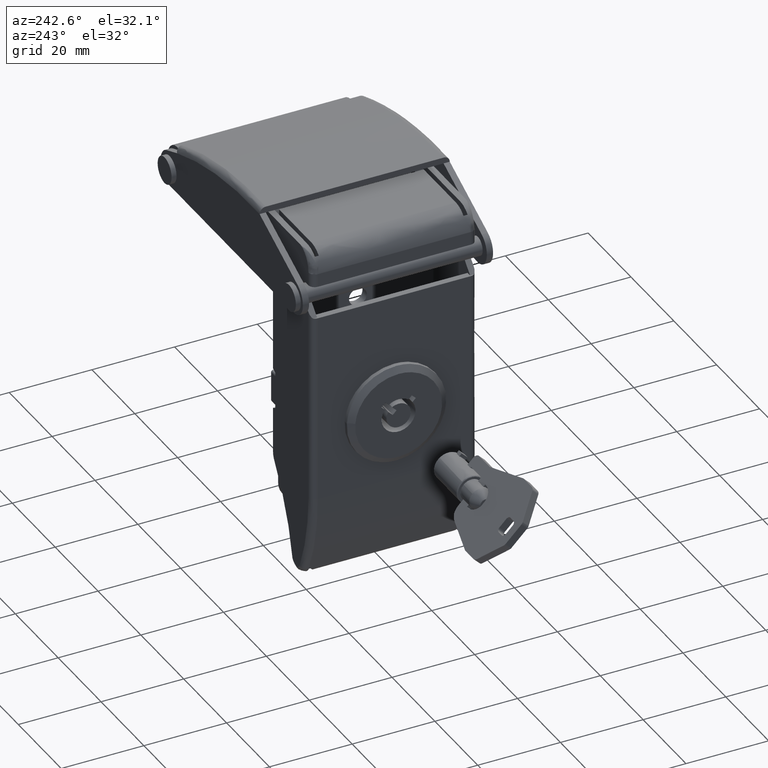
[diagram: clean part render]
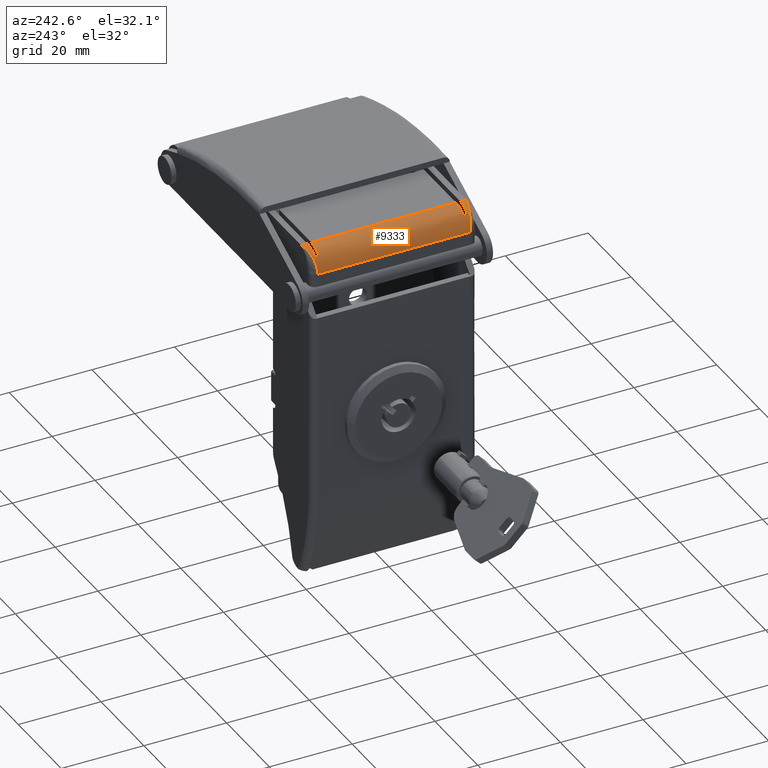
[diagram: same view with one face highlighted and labeled with its STEP entity id]
A machine part, auxiliary view. The second image highlights one B-rep face of the part: STEP entity #9333.
In plain terms, the highlighted face is a freeform B-spline surface patch.
Its self-contained STEP definition (entity closure, byte-faithful):
#7950=CARTESIAN_POINT('',(2.499774046842360,-19.999999999945949,10.700183812501679));
#7951=VERTEX_POINT('',#7950);
#7973=CARTESIAN_POINT('',(-2.500225953158005,-18.499999999945899,5.700183812501681));
#7974=VERTEX_POINT('',#7973);
#7975=CARTESIAN_POINT('',(-2.500225953158010,-18.499999999945889,5.700183812501680));
#7976=CARTESIAN_POINT('',(-2.498559568376104,-18.500643117945842,5.798168828600363));
#7977=CARTESIAN_POINT('',(-2.495191668920071,-18.501942911838398,5.996204531999264));
#7978=CARTESIAN_POINT('',(-2.467560178161782,-18.512170064098761,6.295210417927737));
#7979=CARTESIAN_POINT('',(-2.422248572848211,-18.528411536664660,6.598047549260239));
#7980=CARTESIAN_POINT('',(-2.356686010884040,-18.551298120340181,6.903415747947917));
#7981=CARTESIAN_POINT('',(-2.270473127891905,-18.580655143801401,7.209887579608617));
#7982=CARTESIAN_POINT('',(-2.162720962974908,-18.616530549419309,7.515909191083124));
#7983=CARTESIAN_POINT('',(-2.032806272492662,-18.658911203370309,7.819802790013014));
#7984=CARTESIAN_POINT('',(-1.880182722300694,-18.707799320034621,8.119771148302378));
#7985=CARTESIAN_POINT('',(-1.704455265734961,-18.763198975038978,8.413902230184018));
#7986=CARTESIAN_POINT('',(-1.505375655274228,-18.825090427212590,8.700182276321220));
#7987=CARTESIAN_POINT('',(-1.282884706074203,-18.893550293164409,8.976485873333985));
#7988=CARTESIAN_POINT('',(-1.041347282657713,-18.966975884328310,9.236042358863664));
#7989=CARTESIAN_POINT('',(-0.773826836179085,-19.048753884481691,9.485523335278389));
#7990=CARTESIAN_POINT('',(-0.470736665624685,-19.141338198832852,9.729069161296605));
#7991=CARTESIAN_POINT('',(-0.114776168572373,-19.248454669266799,9.970059362932693));
#7992=CARTESIAN_POINT('',(0.297317075458156,-19.370213335974089,10.197879522938560));
#7993=CARTESIAN_POINT('',(0.767481977468179,-19.506581497443079,10.400763488834279));
#7994=CARTESIAN_POINT('',(1.295746289589744,-19.657622298586951,10.563529772939660));
#7995=CARTESIAN_POINT('',(1.879724480689295,-19.823136228819958,10.677593865638110));
#7996=CARTESIAN_POINT('',(2.288462558985780,-19.939725227307392,10.692485209772300));
#7997=CARTESIAN_POINT('',(2.499774046842012,-19.999999999945949,10.700183812501679));
#7998=B_SPLINE_CURVE_WITH_KNOTS('',3,(#7975,#7976,#7977,#7978,#7979,#7980,#7981,#7982,#7983,#7984,#7985,#7986,#7987,#7988,#7989,#7990,#7991,#7992,#7993,#7994,#7995,#7996,#7997),.UNSPECIFIED.,.F.,.U.,(4,1,1,1,1,1,1,1,1,1,1,1,1,1,1,1,1,1,1,1,4),(0.0,0.036644747239203,0.074062020748987,0.112268345901417,0.151279244260088,0.191109295713854,0.231772197956223,0.273280823106989,0.315647271362814,0.358882921634533,0.402998479184891,0.448004020322414,0.493909034238548,0.538312713655228,0.588095289759690,0.643263272020130,0.703821145783683,0.769772006376145,0.841117954502311,0.917860353095351,1.0),.UNSPECIFIED.);
#7999=EDGE_CURVE('',#7974,#7951,#7998,.T.);
#8129=CARTESIAN_POINT('',(-1.000225953043632,-18.500000000048551,9.270898024410830));
#8130=VERTEX_POINT('',#8129);
#8136=CARTESIAN_POINT('',(2.499774046841990,-18.500000000057749,10.700183812500160));
#8137=VERTEX_POINT('',#8136);
#8138=CARTESIAN_POINT('',(-1.000225953043632,-18.500000000048551,9.270898024410830));
#8139=CARTESIAN_POINT('',(0.457937209169858,-18.500000000052335,10.700183812501681));
#8140=CARTESIAN_POINT('',(2.499774046841990,-18.500000000057700,10.700183812501679));
#8148=(BOUNDED_CURVE()B_SPLINE_CURVE(2,(#8138,#8139,#8140),.UNSPECIFIED.,.F.,.U.)CURVE()GEOMETRIC_REPRESENTATION_ITEM()QUASI_UNIFORM_CURVE()RATIONAL_B_SPLINE_CURVE((1.0,0.925781519213420,1.0))REPRESENTATION_ITEM(''));
#8149=EDGE_CURVE('',#8130,#8137,#8148,.T.);
#8704=CARTESIAN_POINT('',(-2.500225953158005,18.499999999953548,5.700183812501681));
#8705=VERTEX_POINT('',#8704);
#8706=CARTESIAN_POINT('',(-2.500225953158005,-18.499999999945899,5.700183812501681));
#8707=CARTESIAN_POINT('',(-2.500225953158005,18.499999999953548,5.700183812501681));
#8708=QUASI_UNIFORM_CURVE('',1,(#8706,#8707),.UNSPECIFIED.,.F.,.U.);
#8709=EDGE_CURVE('',#7974,#8705,#8708,.T.);
#9086=CARTESIAN_POINT('',(2.499774046842360,-19.999999999945949,10.700183812501679));
#9087=CARTESIAN_POINT('',(2.499774046841990,-18.500000000057749,10.700183812500160));
#9088=QUASI_UNIFORM_CURVE('',1,(#9086,#9087),.UNSPECIFIED.,.F.,.U.);
#9089=EDGE_CURVE('',#7951,#8137,#9088,.T.);
#9212=CARTESIAN_POINT('',(2.630658788381363,-20.999999999943441,10.698470437379470));
#9213=CARTESIAN_POINT('',(2.630658788381363,21.024999999951032,10.698470437379470));
#9214=CARTESIAN_POINT('',(-2.824013896128599,-20.999999999943430,10.841306068481636));
#9215=CARTESIAN_POINT('',(-2.824013896128599,21.024999999951039,10.841306068481636));
#9216=CARTESIAN_POINT('',(-2.490899945267343,-20.999999999943441,5.394941114827402));
#9217=CARTESIAN_POINT('',(-2.490899945267343,21.024999999951032,5.394941114827402));
#9225=(BOUNDED_SURFACE()B_SPLINE_SURFACE(1,2,((#9212,#9214,#9216),(#9213,#9215,#9217)),.UNSPECIFIED.,.F.,.F.,.U.)B_SPLINE_SURFACE_WITH_KNOTS((2,2),(3,3),(0.0,42.024999999894462),(0.0,8.800210617836669),.UNSPECIFIED.)GEOMETRIC_REPRESENTATION_ITEM()RATIONAL_B_SPLINE_SURFACE(((1.0,0.675590207615660,1.0),(1.0,0.675590207615660,1.0)))REPRESENTATION_ITEM('')SURFACE());
#9226=CARTESIAN_POINT('',(2.499774046841990,18.500000000051148,10.700183812500160));
#9227=VERTEX_POINT('',#9226);
#9228=CARTESIAN_POINT('',(2.499774046842360,19.999999999953602,10.700183812501679));
#9229=VERTEX_POINT('',#9228);
#9230=CARTESIAN_POINT('',(2.499774046841990,18.500000000051148,10.700183812500160));
#9231=CARTESIAN_POINT('',(2.499774046842360,19.999999999953602,10.700183812501679));
#9232=QUASI_UNIFORM_CURVE('',1,(#9230,#9231),.UNSPECIFIED.,.F.,.U.);
#9233=EDGE_CURVE('',#9227,#9229,#9232,.T.);
#9234=ORIENTED_EDGE('',*,*,#9233,.T.);
#9235=CARTESIAN_POINT('',(2.499774046842360,19.999999999953602,10.700183812501679));
#9236=CARTESIAN_POINT('',(2.392419738726056,19.969313253947480,10.698192709281750));
#9237=CARTESIAN_POINT('',(2.181182303965408,19.908931983541649,10.694274882937339));
#9238=CARTESIAN_POINT('',(1.870565251119660,19.820706256850531,10.663371245532490));
#9239=CARTESIAN_POINT('',(1.572482351757014,19.736096099452570,10.616486514690260));
#9240=CARTESIAN_POINT('',(1.287713968831147,19.655157228711971,10.553853885568159));
#9241=CARTESIAN_POINT('',(1.016848326299818,19.577875333566219,10.477881323229450));
#9242=CARTESIAN_POINT('',(0.760275631911821,19.504253894683728,10.390355939147810));
#9243=CARTESIAN_POINT('',(0.518213526164931,19.434291848636999,10.293137050132639));
#9244=CARTESIAN_POINT('',(0.290724587394967,19.367989260071258,10.187966163542001));
#9245=CARTESIAN_POINT('',(0.077735505626328,19.305345846624320,10.076504281441011));
#9246=CARTESIAN_POINT('',(-0.120944806914509,19.246361454841601,9.960314662120261));
#9247=CARTESIAN_POINT('',(-0.305607732573511,19.191035539974020,9.840861989822290));
#9248=CARTESIAN_POINT('',(-0.476628333979844,19.139368637258031,9.719509898363233));
#9249=CARTESIAN_POINT('',(-0.634449872621167,19.091357278837251,9.597520471827739));
#9250=CARTESIAN_POINT('',(-0.779568838479470,19.047011457654850,9.476056635049986));
#9251=CARTESIAN_POINT('',(-0.912522941174393,19.006294466049251,9.356179611627645));
#9252=CARTESIAN_POINT('',(-1.166527338720940,18.928919994361880,9.110630365900011));
#9253=CARTESIAN_POINT('',(-1.510835784985258,18.823833870572450,8.713597340833902));
#9254=CARTESIAN_POINT('',(-1.886606745162961,18.706152587724620,8.131859524110150));
#9255=CARTESIAN_POINT('',(-2.170383980582487,18.614385126416071,7.526511226487944));
#9256=CARTESIAN_POINT('',(-2.363763749191071,18.549213471544419,6.912512038671250));
#9257=CARTESIAN_POINT('',(-2.479450638618062,18.507978338612599,6.302778439899957));
#9258=CARTESIAN_POINT('',(-2.493397617078079,18.502622284089199,5.898241879344598));
#9259=CARTESIAN_POINT('',(-2.500225953158010,18.499999999954110,5.700183812501680));
#9260=B_SPLINE_CURVE_WITH_KNOTS('',3,(#9235,#9236,#9237,#9238,#9239,#9240,#9241,#9242,#9243,#9244,#9245,#9246,#9247,#9248,#9249,#9250,#9251,#9252,#9253,#9254,#9255,#9256,#9257,#9258,#9259),.UNSPECIFIED.,.F.,.U.,(4,1,1,1,1,1,1,1,1,1,1,1,1,1,1,1,1,1,1,1,1,1,4),(0.0,0.041761762904653,0.082173205918602,0.121234501048136,0.158945844175421,0.195307458414746,0.230319598114181,0.263982553657176,0.296296657263719,0.327262290050978,0.356879890695761,0.385149966154536,0.412073105055003,0.437649994597632,0.461881442128365,0.484768403016208,0.506312017174343,0.597165752168086,0.684468507109956,0.768303216431058,0.848763613447900,0.925955799110725,1.0),.UNSPECIFIED.);
#9261=EDGE_CURVE('',#9229,#8705,#9260,.T.);
#9262=ORIENTED_EDGE('',*,*,#9261,.T.);
#9263=ORIENTED_EDGE('',*,*,#8709,.F.);
#9264=ORIENTED_EDGE('',*,*,#7999,.T.);
#9265=ORIENTED_EDGE('',*,*,#9089,.T.);
#9266=ORIENTED_EDGE('',*,*,#8149,.F.);
#9267=CARTESIAN_POINT('',(-1.000225953041008,-17.499999999716149,9.270898024410830));
#9268=VERTEX_POINT('',#9267);
#9269=CARTESIAN_POINT('',(-1.000225953041008,-17.499999999716149,9.270898024410830));
#9270=CARTESIAN_POINT('',(-1.000225953043632,-18.500000000048551,9.270898024410830));
#9271=QUASI_UNIFORM_CURVE('',1,(#9269,#9270),.UNSPECIFIED.,.F.,.U.);
#9272=EDGE_CURVE('',#9268,#8130,#9271,.T.);
#9273=ORIENTED_EDGE('',*,*,#9272,.F.);
#9274=CARTESIAN_POINT('',(2.499774046841990,-17.499999999964452,10.700183812500160));
#9275=VERTEX_POINT('',#9274);
#9276=CARTESIAN_POINT('',(2.499774046841990,-17.499999999964452,10.700183812500160));
#9277=CARTESIAN_POINT('',(0.457937209170951,-17.499999999959400,10.700183812501681));
#9278=CARTESIAN_POINT('',(-1.000225954279242,-17.499999999955719,9.270898025674079));
#9286=(BOUNDED_CURVE()B_SPLINE_CURVE(2,(#9276,#9277,#9278),.UNSPECIFIED.,.F.,.U.)CURVE()GEOMETRIC_REPRESENTATION_ITEM()QUASI_UNIFORM_CURVE()RATIONAL_B_SPLINE_CURVE((1.0,0.925781519213491,1.0))REPRESENTATION_ITEM(''));
#9287=EDGE_CURVE('',#9275,#9268,#9286,.T.);
#9288=ORIENTED_EDGE('',*,*,#9287,.F.);
#9289=CARTESIAN_POINT('',(2.499774046841990,17.499999999957851,10.700183812500160));
#9290=VERTEX_POINT('',#9289);
#9291=CARTESIAN_POINT('',(2.499774046841990,-17.499999999964452,10.700183812500160));
#9292=CARTESIAN_POINT('',(2.499774046841990,17.499999999957851,10.700183812500160));
#9293=QUASI_UNIFORM_CURVE('',1,(#9291,#9292),.UNSPECIFIED.,.F.,.U.);
#9294=EDGE_CURVE('',#9275,#9290,#9293,.T.);
#9295=ORIENTED_EDGE('',*,*,#9294,.T.);
#9296=CARTESIAN_POINT('',(-1.000225952995012,17.499999999958249,9.270898026932819));
#9297=VERTEX_POINT('',#9296);
#9298=CARTESIAN_POINT('',(-1.000225952995012,17.499999999958249,9.270898026932819));
#9299=CARTESIAN_POINT('',(0.457937210220013,17.499999999957961,10.700183812501677));
#9300=CARTESIAN_POINT('',(2.499774046841990,17.499999999957751,10.700183812501679));
#9308=(BOUNDED_CURVE()B_SPLINE_CURVE(2,(#9298,#9299,#9300),.UNSPECIFIED.,.F.,.U.)CURVE()GEOMETRIC_REPRESENTATION_ITEM()QUASI_UNIFORM_CURVE()RATIONAL_B_SPLINE_CURVE((1.0,0.925781519281475,1.0))REPRESENTATION_ITEM(''));
#9309=EDGE_CURVE('',#9297,#9290,#9308,.T.);
#9310=ORIENTED_EDGE('',*,*,#9309,.F.);
#9311=CARTESIAN_POINT('',(-1.000225952995012,18.500000000051148,9.270898026932869));
#9312=VERTEX_POINT('',#9311);
#9313=CARTESIAN_POINT('',(-1.000225952995012,18.500000000051148,9.270898026932869));
#9314=CARTESIAN_POINT('',(-1.000225952995012,17.499999999958249,9.270898026932819));
#9315=QUASI_UNIFORM_CURVE('',1,(#9313,#9314),.UNSPECIFIED.,.F.,.U.);
#9316=EDGE_CURVE('',#9312,#9297,#9315,.T.);
#9317=ORIENTED_EDGE('',*,*,#9316,.F.);
#9318=CARTESIAN_POINT('',(2.499774046841990,18.500000000051148,10.700183812500160));
#9319=CARTESIAN_POINT('',(0.457937210220034,18.500000000051148,10.700183812501681));
#9320=CARTESIAN_POINT('',(-1.000225952995014,18.500000000051148,9.270898026932873));
#9328=(BOUNDED_CURVE()B_SPLINE_CURVE(2,(#9318,#9319,#9320),.UNSPECIFIED.,.F.,.U.)CURVE()GEOMETRIC_REPRESENTATION_ITEM()QUASI_UNIFORM_CURVE()RATIONAL_B_SPLINE_CURVE((1.0,0.925781519281477,1.0))REPRESENTATION_ITEM(''));
#9329=EDGE_CURVE('',#9227,#9312,#9328,.T.);
#9330=ORIENTED_EDGE('',*,*,#9329,.F.);
#9331=EDGE_LOOP('',(#9234,#9262,#9263,#9264,#9265,#9266,#9273,#9288,#9295,#9310,#9317,#9330));
#9332=FACE_OUTER_BOUND('',#9331,.T.);
#9333=ADVANCED_FACE('',(#9332),#9225,.T.);